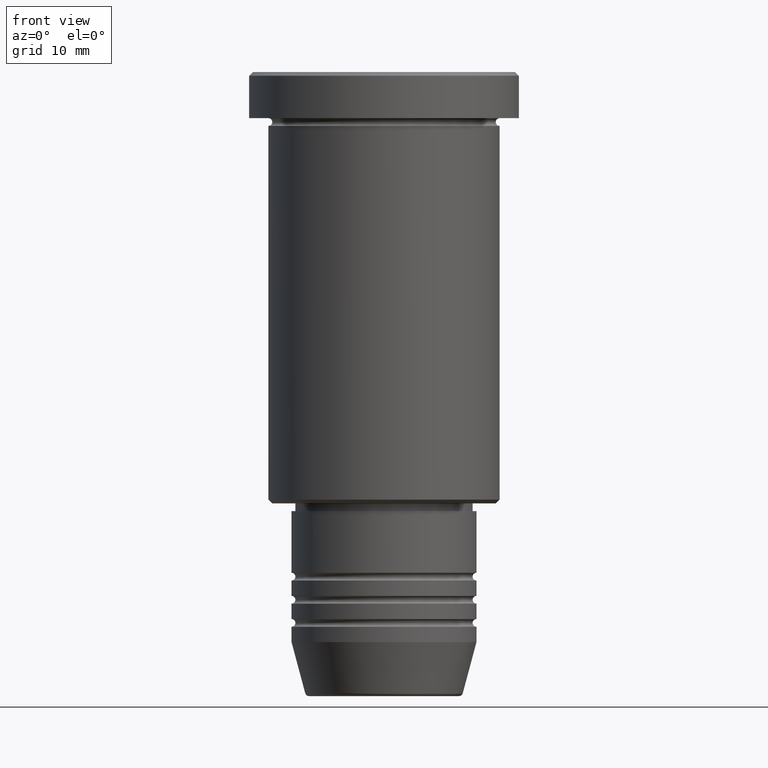
[diagram: clean part render]
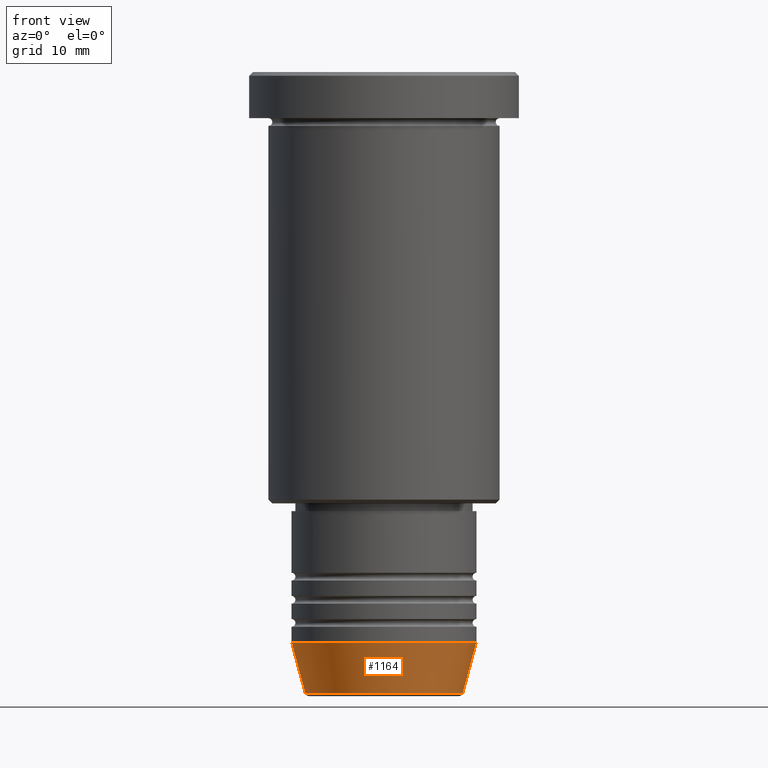
[diagram: same view with one face highlighted and labeled with its STEP entity id]
A machine part, front view. The second image highlights one B-rep face of the part: STEP entity #1164.
In plain terms, the highlighted conical surface has half-angle 15 deg.
Its self-contained STEP definition (entity closure, byte-faithful):
#9 = DIRECTION ( 'NONE',  ( -0.000000000000000000, -0.000000000000000000, 1.000000000000000000 ) ) ;
#11 = LINE ( 'NONE', #18, #468 ) ;
#17 = CARTESIAN_POINT ( 'NONE',  ( 0.000000000000000000, 0.000000000000000000, -74.00000000000001421 ) ) ;
#18 = CARTESIAN_POINT ( 'NONE',  ( -12.00000000000000000, 1.469576158976823947E-15, -74.00000000000001421 ) ) ;
#20 = VECTOR ( 'NONE', #1094, 1000.000000000000000 ) ;
#62 = CIRCLE ( 'NONE', #646, 12.00000000000000000 ) ;
#100 = DIRECTION ( 'NONE',  ( 1.000000000000000000, 0.000000000000000000, 0.000000000000000000 ) ) ;
#107 = CONICAL_SURFACE ( 'NONE', #268, 12.00000000000000000, 0.2617993877991500740 ) ;
#125 = CARTESIAN_POINT ( 'NONE',  ( -12.00000000000000000, 1.469576158976823947E-15, -74.00000000000001421 ) ) ;
#140 = ORIENTED_EDGE ( 'NONE', *, *, #802, .T. ) ;
#268 = AXIS2_PLACEMENT_3D ( 'NONE', #744, #967, #988 ) ;
#269 = CARTESIAN_POINT ( 'NONE',  ( 0.000000000000000000, 0.000000000000000000, -80.62940952255128479 ) ) ;
#311 = EDGE_CURVE ( 'NONE', #905, #386, #1074, .T. ) ;
#351 = EDGE_CURVE ( 'NONE', #973, #386, #62, .T. ) ;
#354 = EDGE_LOOP ( 'NONE', ( #454, #140, #463, #969 ) ) ;
#386 = VERTEX_POINT ( 'NONE', #479 ) ;
#389 = DIRECTION ( 'NONE',  ( -0.000000000000000000, -0.000000000000000000, 1.000000000000000000 ) ) ;
#404 = CIRCLE ( 'NONE', #850, 10.22365507213718949 ) ;
#454 = ORIENTED_EDGE ( 'NONE', *, *, #930, .F. ) ;
#463 = ORIENTED_EDGE ( 'NONE', *, *, #311, .T. ) ;
#468 = VECTOR ( 'NONE', #933, 1000.000000000000000 ) ;
#479 = CARTESIAN_POINT ( 'NONE',  ( 12.00000000000000000, 0.000000000000000000, -74.00000000000001421 ) ) ;
#627 = FACE_OUTER_BOUND ( 'NONE', #354, .T. ) ;
#636 = CARTESIAN_POINT ( 'NONE',  ( 12.00000000000000000, 0.000000000000000000, -74.00000000000001421 ) ) ;
#646 = AXIS2_PLACEMENT_3D ( 'NONE', #17, #389, #772 ) ;
#744 = CARTESIAN_POINT ( 'NONE',  ( 0.000000000000000000, 0.000000000000000000, -74.00000000000001421 ) ) ;
#772 = DIRECTION ( 'NONE',  ( 1.000000000000000000, 0.000000000000000000, 0.000000000000000000 ) ) ;
#802 = EDGE_CURVE ( 'NONE', #835, #905, #404, .T. ) ;
#835 = VERTEX_POINT ( 'NONE', #1002 ) ;
#850 = AXIS2_PLACEMENT_3D ( 'NONE', #269, #9, #100 ) ;
#905 = VERTEX_POINT ( 'NONE', #1116 ) ;
#930 = EDGE_CURVE ( 'NONE', #835, #973, #11, .T. ) ;
#933 = DIRECTION ( 'NONE',  ( -0.2588190451025213501, 3.169619151431772337E-17, 0.9659258262890680902 ) ) ;
#967 = DIRECTION ( 'NONE',  ( -0.000000000000000000, -0.000000000000000000, 1.000000000000000000 ) ) ;
#969 = ORIENTED_EDGE ( 'NONE', *, *, #351, .F. ) ;
#973 = VERTEX_POINT ( 'NONE', #125 ) ;
#988 = DIRECTION ( 'NONE',  ( 1.000000000000000000, 0.000000000000000000, 0.000000000000000000 ) ) ;
#1002 = CARTESIAN_POINT ( 'NONE',  ( -10.22365507213718949, 1.360806402472382547E-15, -80.62940952255128479 ) ) ;
#1074 = LINE ( 'NONE', #636, #20 ) ;
#1094 = DIRECTION ( 'NONE',  ( 0.2588190451025213501, 0.000000000000000000, 0.9659258262890680902 ) ) ;
#1116 = CARTESIAN_POINT ( 'NONE',  ( 10.22365507213718949, 0.000000000000000000, -80.62940952255128479 ) ) ;
#1164 = ADVANCED_FACE ( 'NONE', ( #627 ), #107, .T. ) ;